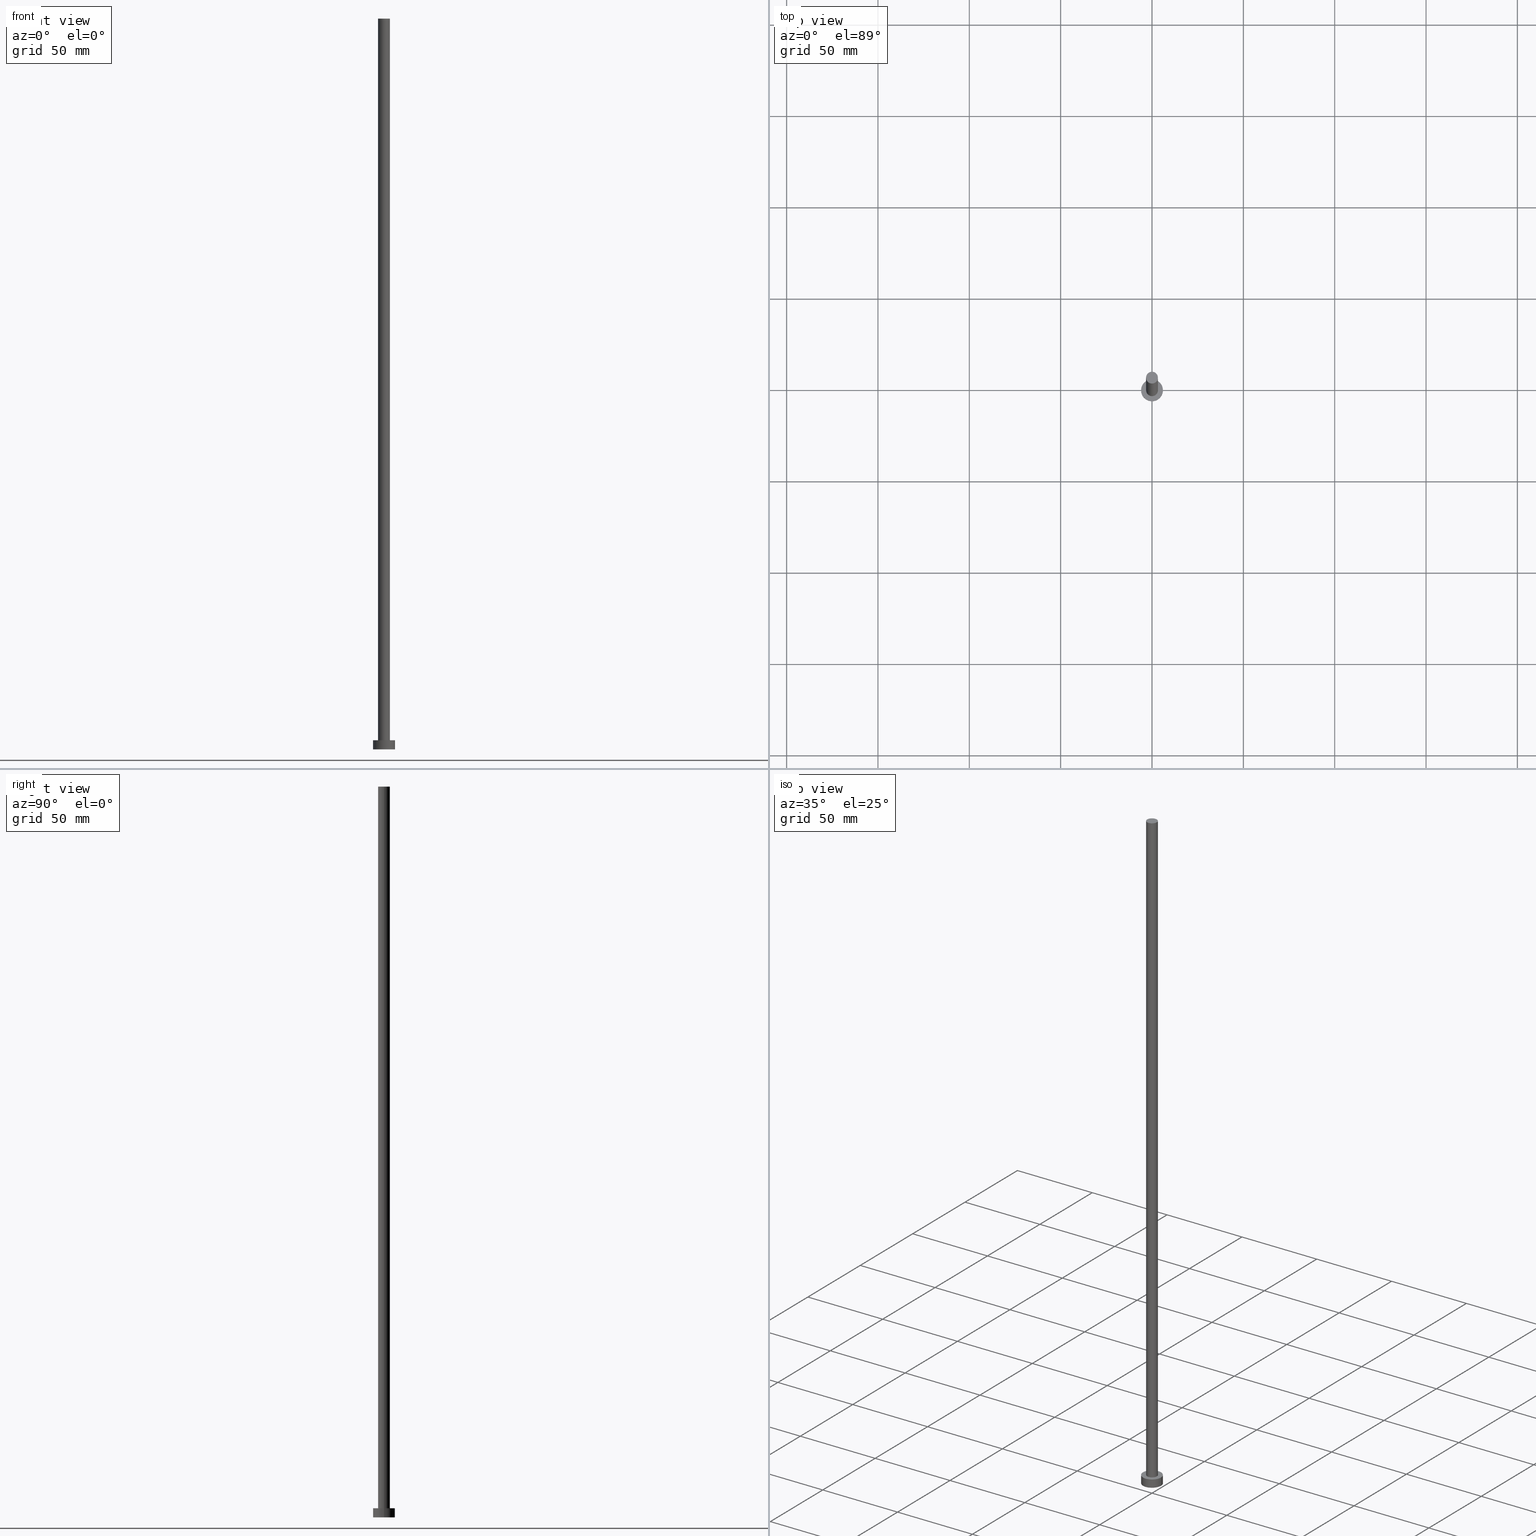
[diagram: canonical four-view strip — front | top / right | iso, engineering-drawing reading convention]
A machine part, canonical four-view strip (front | top / right | iso — engineering-drawing reading convention). The complete STEP part file that produces these views, byte-faithful:
ISO-10303-21;
HEADER;
FILE_DESCRIPTION (( 'STEP AP203' ),
    '1' );
FILE_NAME ('4914.STEP',
    '2023-02-13T15:16:41',
    ( '' ),
    ( '' ),
    'SwSTEP 2.0',
    'SolidWorks 2019',
    '' );
FILE_SCHEMA (( 'CONFIG_CONTROL_DESIGN' ));
ENDSEC;

DATA;
#1 = EDGE_CURVE ( 'NONE', #215, #181, #124, .T. ) ;
#2 = DIRECTION ( 'NONE',  ( 0.000000000000000000, 0.000000000000000000, 1.000000000000000000 ) ) ;
#3 = CARTESIAN_POINT ( 'NONE',  ( -6.000000000000000888, 0.000000000000000000, 5.000000000000000000 ) ) ;
#4 = APPROVAL_ROLE ( '' ) ;
#5 = CC_DESIGN_APPROVAL ( #178, ( #255 ) ) ;
#6 = DATE_TIME_ROLE ( 'creation_date' ) ;
#7 = DIRECTION ( 'NONE',  ( 1.000000000000000000, 0.000000000000000000, 0.000000000000000000 ) ) ;
#8 = CYLINDRICAL_SURFACE ( 'NONE', #237, 6.000000000000000888 ) ;
#9 = APPROVAL_DATE_TIME ( #225, #65 ) ;
#10 = DIRECTION ( 'NONE',  ( -1.000000000000000000, 0.000000000000000000, 0.000000000000000000 ) ) ;
#11 = APPROVAL_STATUS ( 'not_yet_approved' ) ;
#12 = AXIS2_PLACEMENT_3D ( 'NONE', #82, #46, #99 ) ;
#13 = APPROVAL_PERSON_ORGANIZATION ( #37, #106, #192 ) ;
#14 = ORIENTED_EDGE ( 'NONE', *, *, #44, .F. ) ;
#15 = DIRECTION ( 'NONE',  ( -0.000000000000000000, -0.000000000000000000, -1.000000000000000000 ) ) ;
#16 = FACE_OUTER_BOUND ( 'NONE', #97, .T. ) ;
#17 = ORIENTED_EDGE ( 'NONE', *, *, #162, .T. ) ;
#18 = APPLICATION_CONTEXT ( 'configuration controlled 3d designs of mechanical parts and assemblies' ) ;
#19 = APPROVAL_PERSON_ORGANIZATION ( #128, #178, #211 ) ;
#20 = CC_DESIGN_PERSON_AND_ORGANIZATION_ASSIGNMENT ( #229, #160, ( #250 ) ) ;
#21 = ORIENTED_EDGE ( 'NONE', *, *, #49, .F. ) ;
#22 = CARTESIAN_POINT ( 'NONE',  ( -3.250000000000000444, 0.000000000000000000, 400.0000000000000000 ) ) ;
#23 = FACE_OUTER_BOUND ( 'NONE', #157, .T. ) ;
#24 = CC_DESIGN_PERSON_AND_ORGANIZATION_ASSIGNMENT ( #158, #70, ( #222 ) ) ;
#25 = LINE ( 'NONE', #3, #151 ) ;
#26 = CARTESIAN_POINT ( 'NONE',  ( 6.000000000000000888, 7.347880794884120722E-16, 0.000000000000000000 ) ) ;
#27 = DIRECTION ( 'NONE',  ( -0.000000000000000000, -0.000000000000000000, -1.000000000000000000 ) ) ;
#28 = EDGE_CURVE ( 'NONE', #169, #55, #167, .T. ) ;
#29 = APPROVAL_DATE_TIME ( #177, #178 ) ;
#30 = CARTESIAN_POINT ( 'NONE',  ( 0.000000000000000000, 0.000000000000000000, 5.000000000000000000 ) ) ;
#31 = DATE_TIME_ROLE ( 'classification_date' ) ;
#32 = EDGE_CURVE ( 'NONE', #55, #169, #239, .T. ) ;
#33 = CARTESIAN_POINT ( 'NONE',  ( 6.000000000000000888, 7.347880794884120722E-16, 5.000000000000000000 ) ) ;
#34 = PERSON_AND_ORGANIZATION_ROLE ( 'creator' ) ;
#35 = DIRECTION ( 'NONE',  ( -0.000000000000000000, -0.000000000000000000, -1.000000000000000000 ) ) ;
#36 = FACE_BOUND ( 'NONE', #61, .T. ) ;
#37 = PERSON_AND_ORGANIZATION ( #123, #147 ) ;
#38 = CARTESIAN_POINT ( 'NONE',  ( 0.000000000000000000, 0.000000000000000000, 0.000000000000000000 ) ) ;
#39 = ORIENTED_EDGE ( 'NONE', *, *, #32, .T. ) ;
#40 = LINE ( 'NONE', #22, #90 ) ;
#41 = CIRCLE ( 'NONE', #146, 3.250000000000000444 ) ;
#42 =( GEOMETRIC_REPRESENTATION_CONTEXT ( 3 ) GLOBAL_UNCERTAINTY_ASSIGNED_CONTEXT ( ( #245 ) ) GLOBAL_UNIT_ASSIGNED_CONTEXT ( ( #186, #201, #164 ) ) REPRESENTATION_CONTEXT ( 'NONE', 'WORKASPACE' ) );
#43 = DIRECTION ( 'NONE',  ( 0.000000000000000000, 0.000000000000000000, 1.000000000000000000 ) ) ;
#44 = EDGE_CURVE ( 'NONE', #138, #55, #209, .T. ) ;
#45 = CC_DESIGN_PERSON_AND_ORGANIZATION_ASSIGNMENT ( #227, #233, ( #255 ) ) ;
#46 = DIRECTION ( 'NONE',  ( 0.000000000000000000, 0.000000000000000000, 1.000000000000000000 ) ) ;
#47 = AXIS2_PLACEMENT_3D ( 'NONE', #66, #148, #173 ) ;
#48 = CARTESIAN_POINT ( 'NONE',  ( 6.000000000000000888, 7.347880794884120722E-16, 5.000000000000000000 ) ) ;
#49 = EDGE_CURVE ( 'NONE', #75, #169, #25, .T. ) ;
#50 = FACE_OUTER_BOUND ( 'NONE', #183, .T. ) ;
#51 = CALENDAR_DATE ( 2023, 13, 2 ) ;
#52 = DIRECTION ( 'NONE',  ( 0.000000000000000000, 0.000000000000000000, 1.000000000000000000 ) ) ;
#53 = FACE_OUTER_BOUND ( 'NONE', #145, .T. ) ;
#54 = CARTESIAN_POINT ( 'NONE',  ( 0.000000000000000000, 0.000000000000000000, 400.0000000000000000 ) ) ;
#55 = VERTEX_POINT ( 'NONE', #26 ) ;
#56 = CARTESIAN_POINT ( 'NONE',  ( 0.000000000000000000, 0.000000000000000000, 5.000000000000000000 ) ) ;
#57 = EDGE_LOOP ( 'NONE', ( #202, #72, #39, #21 ) ) ;
#58 = PLANE ( 'NONE',  #216 ) ;
#59 = AXIS2_PLACEMENT_3D ( 'NONE', #85, #52, #131 ) ;
#60 = CIRCLE ( 'NONE', #111, 3.250000000000000444 ) ;
#61 = EDGE_LOOP ( 'NONE', ( #109, #197 ) ) ;
#62 = ADVANCED_BREP_SHAPE_REPRESENTATION ( '4914', ( #236, #141 ), #42 ) ;
#63 = DIRECTION ( 'NONE',  ( 1.000000000000000000, 0.000000000000000000, -0.000000000000000000 ) ) ;
#64 = ADVANCED_FACE ( 'NONE', ( #16 ), #156, .T. ) ;
#65 = APPROVAL ( #191, 'NEUR�EN�' ) ;
#66 = CARTESIAN_POINT ( 'NONE',  ( 0.000000000000000000, 0.000000000000000000, 0.000000000000000000 ) ) ;
#67 = PERSON_AND_ORGANIZATION ( #123, #147 ) ;
#68 = CARTESIAN_POINT ( 'NONE',  ( 0.000000000000000000, 0.000000000000000000, 0.000000000000000000 ) ) ;
#69 = LOCAL_TIME ( 16, 16, 41.00000000000000000, #175 ) ;
#70 = PERSON_AND_ORGANIZATION_ROLE ( 'creator' ) ;
#71 = ADVANCED_FACE ( 'NONE', ( #213 ), #159, .T. ) ;
#72 = ORIENTED_EDGE ( 'NONE', *, *, #44, .T. ) ;
#73 = COORDINATED_UNIVERSAL_TIME_OFFSET ( 1, 0, .AHEAD. ) ;
#74 = CYLINDRICAL_SURFACE ( 'NONE', #88, 3.250000000000000444 ) ;
#75 = VERTEX_POINT ( 'NONE', #112 ) ;
#76 = APPROVAL_PERSON_ORGANIZATION ( #102, #65, #4 ) ;
#77 = ORIENTED_EDGE ( 'NONE', *, *, #28, .F. ) ;
#78 = DIRECTION ( 'NONE',  ( 1.000000000000000000, 0.000000000000000000, 0.000000000000000000 ) ) ;
#79 = CARTESIAN_POINT ( 'NONE',  ( 3.250000000000000444, 3.980102097228897245E-16, 5.000000000000000000 ) ) ;
#80 = ORIENTED_EDGE ( 'NONE', *, *, #174, .T. ) ;
#81 = DIRECTION ( 'NONE',  ( 1.000000000000000000, 0.000000000000000000, 0.000000000000000000 ) ) ;
#82 = CARTESIAN_POINT ( 'NONE',  ( 0.000000000000000000, 0.000000000000000000, 5.000000000000000000 ) ) ;
#83 = CIRCLE ( 'NONE', #193, 6.000000000000000888 ) ;
#84 = PERSON_AND_ORGANIZATION ( #123, #147 ) ;
#85 = CARTESIAN_POINT ( 'NONE',  ( 0.000000000000000000, 0.000000000000000000, 400.0000000000000000 ) ) ;
#86 = DATE_AND_TIME ( #155, #234 ) ;
#87 = CARTESIAN_POINT ( 'NONE',  ( 0.000000000000000000, 0.000000000000000000, 400.0000000000000000 ) ) ;
#88 = AXIS2_PLACEMENT_3D ( 'NONE', #87, #27, #199 ) ;
#89 = EDGE_CURVE ( 'NONE', #75, #138, #246, .T. ) ;
#90 = VECTOR ( 'NONE', #252, 1000.000000000000000 ) ;
#91 = DATE_AND_TIME ( #51, #69 ) ;
#92 = ORIENTED_EDGE ( 'NONE', *, *, #207, .T. ) ;
#93 = CARTESIAN_POINT ( 'NONE',  ( 0.000000000000000000, 0.000000000000000000, 5.000000000000000000 ) ) ;
#94 = CC_DESIGN_APPROVAL ( #65, ( #222 ) ) ;
#95 = ORIENTED_EDGE ( 'NONE', *, *, #242, .F. ) ;
#96 = DIRECTION ( 'NONE',  ( 0.000000000000000000, 0.000000000000000000, 1.000000000000000000 ) ) ;
#97 = EDGE_LOOP ( 'NONE', ( #17, #235 ) ) ;
#98 = ORIENTED_EDGE ( 'NONE', *, *, #244, .T. ) ;
#99 = DIRECTION ( 'NONE',  ( 1.000000000000000000, 0.000000000000000000, 0.000000000000000000 ) ) ;
#100 = PLANE ( 'NONE',  #208 ) ;
#101 = CARTESIAN_POINT ( 'NONE',  ( 0.000000000000000000, 0.000000000000000000, 0.000000000000000000 ) ) ;
#102 = PERSON_AND_ORGANIZATION ( #123, #147 ) ;
#103 = DIRECTION ( 'NONE',  ( 1.000000000000000000, 0.000000000000000000, -0.000000000000000000 ) ) ;
#104 = CARTESIAN_POINT ( 'NONE',  ( 3.250000000000000444, 3.980102097228897245E-16, 400.0000000000000000 ) ) ;
#105 = SHAPE_DEFINITION_REPRESENTATION ( #118, #62 ) ;
#106 = APPROVAL ( #11, 'NEUR�EN�' ) ;
#107 = CARTESIAN_POINT ( 'NONE',  ( -3.250000000000000444, 0.000000000000000000, 400.0000000000000000 ) ) ;
#108 = COORDINATED_UNIVERSAL_TIME_OFFSET ( 1, 0, .AHEAD. ) ;
#109 = ORIENTED_EDGE ( 'NONE', *, *, #179, .F. ) ;
#110 = VECTOR ( 'NONE', #224, 1000.000000000000000 ) ;
#111 = AXIS2_PLACEMENT_3D ( 'NONE', #116, #96, #184 ) ;
#112 = CARTESIAN_POINT ( 'NONE',  ( -6.000000000000000888, 0.000000000000000000, 5.000000000000000000 ) ) ;
#113 = EDGE_LOOP ( 'NONE', ( #115, #80 ) ) ;
#114 = FACE_OUTER_BOUND ( 'NONE', #113, .T. ) ;
#115 = ORIENTED_EDGE ( 'NONE', *, *, #89, .T. ) ;
#116 = CARTESIAN_POINT ( 'NONE',  ( 0.000000000000000000, 0.000000000000000000, 400.0000000000000000 ) ) ;
#117 = CC_DESIGN_DATE_AND_TIME_ASSIGNMENT ( #91, #31, ( #255 ) ) ;
#118 = PRODUCT_DEFINITION_SHAPE ( 'NONE', 'NONE',  #222 ) ;
#119 = ORIENTED_EDGE ( 'NONE', *, *, #49, .T. ) ;
#120 = AXIS2_PLACEMENT_3D ( 'NONE', #230, #129, #212 ) ;
#121 = LOCAL_TIME ( 16, 16, 41.00000000000000000, #194 ) ;
#122 = CARTESIAN_POINT ( 'NONE',  ( -3.250000000000000444, 0.000000000000000000, 5.000000000000000000 ) ) ;
#123 = PERSON ( 'NEUR�EN�', 'NEUR�EN�', 'NEUR�EN�', ('NEUR�EN�'), ('NEUR�EN�'), ('NEUR�EN�') ) ;
#124 = CIRCLE ( 'NONE', #12, 3.250000000000000444 ) ;
#125 = DIRECTION ( 'NONE',  ( 1.000000000000000000, 0.000000000000000000, 0.000000000000000000 ) ) ;
#126 = APPLICATION_PROTOCOL_DEFINITION ( 'international standard', 'config_control_design', 1994, #172 ) ;
#127 = DIRECTION ( 'NONE',  ( -0.000000000000000000, -0.000000000000000000, -1.000000000000000000 ) ) ;
#128 = PERSON_AND_ORGANIZATION ( #123, #147 ) ;
#129 = DIRECTION ( 'NONE',  ( -0.000000000000000000, -0.000000000000000000, -1.000000000000000000 ) ) ;
#130 = APPROVAL_STATUS ( 'not_yet_approved' ) ;
#131 = DIRECTION ( 'NONE',  ( 1.000000000000000000, 0.000000000000000000, -0.000000000000000000 ) ) ;
#132 = VERTEX_POINT ( 'NONE', #104 ) ;
#133 = DATE_AND_TIME ( #180, #204 ) ;
#134 = ORIENTED_EDGE ( 'NONE', *, *, #244, .F. ) ;
#135 = CALENDAR_DATE ( 2023, 13, 2 ) ;
#136 = ADVANCED_FACE ( 'NONE', ( #137 ), #74, .T. ) ;
#137 = FACE_OUTER_BOUND ( 'NONE', #251, .T. ) ;
#138 = VERTEX_POINT ( 'NONE', #33 ) ;
#139 = DIRECTION ( 'NONE',  ( 0.000000000000000000, 0.000000000000000000, 1.000000000000000000 ) ) ;
#140 = PRODUCT ( '4914', '4914', '', ( #190 ) ) ;
#141 = AXIS2_PLACEMENT_3D ( 'NONE', #38, #2, #81 ) ;
#142 = VERTEX_POINT ( 'NONE', #107 ) ;
#143 = APPLICATION_PROTOCOL_DEFINITION ( 'international standard', 'config_control_design', 1994, #18 ) ;
#144 = ADVANCED_FACE ( 'NONE', ( #50 ), #232, .T. ) ;
#145 = EDGE_LOOP ( 'NONE', ( #14, #220, #119, #238 ) ) ;
#146 = AXIS2_PLACEMENT_3D ( 'NONE', #54, #139, #7 ) ;
#147 = ORGANIZATION ( 'NEUR�EN�', 'NEUR�EN�', '' ) ;
#148 = DIRECTION ( 'NONE',  ( 0.000000000000000000, 0.000000000000000000, 1.000000000000000000 ) ) ;
#149 = PERSON_AND_ORGANIZATION_ROLE ( 'design_owner' ) ;
#150 = CIRCLE ( 'NONE', #188, 3.250000000000000444 ) ;
#151 = VECTOR ( 'NONE', #127, 1000.000000000000000 ) ;
#152 = CALENDAR_DATE ( 2023, 13, 2 ) ;
#153 = DIRECTION ( 'NONE',  ( 0.000000000000000000, 0.000000000000000000, 1.000000000000000000 ) ) ;
#154 = DIRECTION ( 'NONE',  ( 1.000000000000000000, 0.000000000000000000, 0.000000000000000000 ) ) ;
#155 = CALENDAR_DATE ( 2023, 13, 2 ) ;
#156 = PLANE ( 'NONE',  #59 ) ;
#157 = EDGE_LOOP ( 'NONE', ( #77, #200 ) ) ;
#158 = PERSON_AND_ORGANIZATION ( #123, #147 ) ;
#159 = CYLINDRICAL_SURFACE ( 'NONE', #217, 6.000000000000000888 ) ;
#160 = PERSON_AND_ORGANIZATION_ROLE ( 'design_supplier' ) ;
#161 = CARTESIAN_POINT ( 'NONE',  ( 0.000000000000000000, 0.000000000000000000, 5.000000000000000000 ) ) ;
#162 = EDGE_CURVE ( 'NONE', #142, #132, #41, .T. ) ;
#163 = DIRECTION ( 'NONE',  ( 1.000000000000000000, 0.000000000000000000, 0.000000000000000000 ) ) ;
#164 =( NAMED_UNIT ( * ) SI_UNIT ( $, .STERADIAN. ) SOLID_ANGLE_UNIT ( ) );
#165 = CC_DESIGN_DATE_AND_TIME_ASSIGNMENT ( #86, #6, ( #222 ) ) ;
#166 = DIRECTION ( 'NONE',  ( 0.000000000000000000, 0.000000000000000000, 1.000000000000000000 ) ) ;
#167 = CIRCLE ( 'NONE', #47, 6.000000000000000888 ) ;
#168 = CC_DESIGN_APPROVAL ( #106, ( #250 ) ) ;
#169 = VERTEX_POINT ( 'NONE', #241 ) ;
#170 = CARTESIAN_POINT ( 'NONE',  ( 3.250000000000000444, 3.980102097228897245E-16, 400.0000000000000000 ) ) ;
#171 = CC_DESIGN_PERSON_AND_ORGANIZATION_ASSIGNMENT ( #67, #149, ( #140 ) ) ;
#172 = APPLICATION_CONTEXT ( 'configuration controlled 3d designs of mechanical parts and assemblies' ) ;
#173 = DIRECTION ( 'NONE',  ( 1.000000000000000000, 0.000000000000000000, 0.000000000000000000 ) ) ;
#174 = EDGE_CURVE ( 'NONE', #138, #75, #83, .T. ) ;
#175 = COORDINATED_UNIVERSAL_TIME_OFFSET ( 1, 0, .AHEAD. ) ;
#176 = CARTESIAN_POINT ( 'NONE',  ( 0.000000000000000000, 0.000000000000000000, 5.000000000000000000 ) ) ;
#177 = DATE_AND_TIME ( #135, #121 ) ;
#178 = APPROVAL ( #130, 'NEUR�EN�' ) ;
#179 = EDGE_CURVE ( 'NONE', #181, #215, #150, .T. ) ;
#180 = CALENDAR_DATE ( 2023, 13, 2 ) ;
#181 = VERTEX_POINT ( 'NONE', #122 ) ;
#182 = DIRECTION ( 'NONE',  ( 0.000000000000000000, 0.000000000000000000, 1.000000000000000000 ) ) ;
#183 = EDGE_LOOP ( 'NONE', ( #95, #92, #228, #134 ) ) ;
#184 = DIRECTION ( 'NONE',  ( 1.000000000000000000, 0.000000000000000000, 0.000000000000000000 ) ) ;
#185 = CARTESIAN_POINT ( 'NONE',  ( 0.000000000000000000, 0.000000000000000000, 5.000000000000000000 ) ) ;
#186 =( LENGTH_UNIT ( ) NAMED_UNIT ( * ) SI_UNIT ( .MILLI., .METRE. ) );
#187 = DIRECTION ( 'NONE',  ( 0.000000000000000000, 0.000000000000000000, 1.000000000000000000 ) ) ;
#188 = AXIS2_PLACEMENT_3D ( 'NONE', #185, #43, #78 ) ;
#189 = PRODUCT_RELATED_PRODUCT_CATEGORY ( 'detail', '', ( #140 ) ) ;
#190 = MECHANICAL_CONTEXT ( 'NONE', #18, 'mechanical' ) ;
#191 = APPROVAL_STATUS ( 'not_yet_approved' ) ;
#192 = APPROVAL_ROLE ( '' ) ;
#193 = AXIS2_PLACEMENT_3D ( 'NONE', #176, #243, #154 ) ;
#194 = COORDINATED_UNIVERSAL_TIME_OFFSET ( 1, 0, .AHEAD. ) ;
#195 = AXIS2_PLACEMENT_3D ( 'NONE', #68, #187, #125 ) ;
#196 = CC_DESIGN_PERSON_AND_ORGANIZATION_ASSIGNMENT ( #84, #34, ( #250 ) ) ;
#197 = ORIENTED_EDGE ( 'NONE', *, *, #1, .F. ) ;
#198 = LOCAL_TIME ( 16, 16, 41.00000000000000000, #240 ) ;
#199 = DIRECTION ( 'NONE',  ( -1.000000000000000000, 0.000000000000000000, 0.000000000000000000 ) ) ;
#200 = ORIENTED_EDGE ( 'NONE', *, *, #32, .F. ) ;
#201 =( NAMED_UNIT ( * ) PLANE_ANGLE_UNIT ( ) SI_UNIT ( $, .RADIAN. ) );
#202 = ORIENTED_EDGE ( 'NONE', *, *, #174, .F. ) ;
#203 = CLOSED_SHELL ( 'NONE', ( #144, #71, #219, #226, #210, #136, #64 ) ) ;
#204 = LOCAL_TIME ( 16, 16, 41.00000000000000000, #108 ) ;
#205 = ORIENTED_EDGE ( 'NONE', *, *, #207, .F. ) ;
#206 = LINE ( 'NONE', #170, #218 ) ;
#207 = EDGE_CURVE ( 'NONE', #132, #215, #206, .T. ) ;
#208 = AXIS2_PLACEMENT_3D ( 'NONE', #101, #166, #103 ) ;
#209 = LINE ( 'NONE', #48, #110 ) ;
#210 = ADVANCED_FACE ( 'NONE', ( #23 ), #100, .F. ) ;
#211 = APPROVAL_ROLE ( '' ) ;
#212 = DIRECTION ( 'NONE',  ( -1.000000000000000000, 0.000000000000000000, 0.000000000000000000 ) ) ;
#213 = FACE_OUTER_BOUND ( 'NONE', #57, .T. ) ;
#214 = APPROVAL_DATE_TIME ( #133, #106 ) ;
#215 = VERTEX_POINT ( 'NONE', #79 ) ;
#216 = AXIS2_PLACEMENT_3D ( 'NONE', #93, #182, #63 ) ;
#217 = AXIS2_PLACEMENT_3D ( 'NONE', #30, #35, #247 ) ;
#218 = VECTOR ( 'NONE', #253, 1000.000000000000000 ) ;
#219 = ADVANCED_FACE ( 'NONE', ( #53 ), #8, .T. ) ;
#220 = ORIENTED_EDGE ( 'NONE', *, *, #89, .F. ) ;
#221 = CC_DESIGN_SECURITY_CLASSIFICATION ( #255, ( #250 ) ) ;
#222 = PRODUCT_DEFINITION ( 'NEZN�M�', '', #250, #223 ) ;
#223 = DESIGN_CONTEXT ( 'detailed design', #172, 'design' ) ;
#224 = DIRECTION ( 'NONE',  ( -0.000000000000000000, -0.000000000000000000, -1.000000000000000000 ) ) ;
#225 = DATE_AND_TIME ( #152, #198 ) ;
#226 = ADVANCED_FACE ( 'NONE', ( #36, #114 ), #58, .T. ) ;
#227 = PERSON_AND_ORGANIZATION ( #123, #147 ) ;
#228 = ORIENTED_EDGE ( 'NONE', *, *, #1, .T. ) ;
#229 = PERSON_AND_ORGANIZATION ( #123, #147 ) ;
#230 = CARTESIAN_POINT ( 'NONE',  ( 0.000000000000000000, 0.000000000000000000, 400.0000000000000000 ) ) ;
#231 = SECURITY_CLASSIFICATION_LEVEL ( 'unclassified' ) ;
#232 = CYLINDRICAL_SURFACE ( 'NONE', #120, 3.250000000000000444 ) ;
#233 = PERSON_AND_ORGANIZATION_ROLE ( 'classification_officer' ) ;
#234 = LOCAL_TIME ( 16, 16, 41.00000000000000000, #73 ) ;
#235 = ORIENTED_EDGE ( 'NONE', *, *, #242, .T. ) ;
#236 = MANIFOLD_SOLID_BREP ( 'P�idat vysunut�m3', #203 ) ;
#237 = AXIS2_PLACEMENT_3D ( 'NONE', #161, #15, #10 ) ;
#238 = ORIENTED_EDGE ( 'NONE', *, *, #28, .T. ) ;
#239 = CIRCLE ( 'NONE', #195, 6.000000000000000888 ) ;
#240 = COORDINATED_UNIVERSAL_TIME_OFFSET ( 1, 0, .AHEAD. ) ;
#241 = CARTESIAN_POINT ( 'NONE',  ( -6.000000000000000888, 0.000000000000000000, 0.000000000000000000 ) ) ;
#242 = EDGE_CURVE ( 'NONE', #132, #142, #60, .T. ) ;
#243 = DIRECTION ( 'NONE',  ( 0.000000000000000000, 0.000000000000000000, 1.000000000000000000 ) ) ;
#244 = EDGE_CURVE ( 'NONE', #142, #181, #40, .T. ) ;
#245 = UNCERTAINTY_MEASURE_WITH_UNIT (LENGTH_MEASURE( 1.000000000000000082E-05 ), #186, 'distance_accuracy_value', 'NONE');
#246 = CIRCLE ( 'NONE', #249, 6.000000000000000888 ) ;
#247 = DIRECTION ( 'NONE',  ( -1.000000000000000000, 0.000000000000000000, 0.000000000000000000 ) ) ;
#248 = ORIENTED_EDGE ( 'NONE', *, *, #179, .T. ) ;
#249 = AXIS2_PLACEMENT_3D ( 'NONE', #56, #153, #163 ) ;
#250 = PRODUCT_DEFINITION_FORMATION_WITH_SPECIFIED_SOURCE ( 'LIBOVOLN�', '', #140, .NOT_KNOWN. ) ;
#251 = EDGE_LOOP ( 'NONE', ( #205, #254, #98, #248 ) ) ;
#252 = DIRECTION ( 'NONE',  ( -0.000000000000000000, -0.000000000000000000, -1.000000000000000000 ) ) ;
#253 = DIRECTION ( 'NONE',  ( -0.000000000000000000, -0.000000000000000000, -1.000000000000000000 ) ) ;
#254 = ORIENTED_EDGE ( 'NONE', *, *, #162, .F. ) ;
#255 = SECURITY_CLASSIFICATION ( '', '', #231 ) ;
ENDSEC;
END-ISO-10303-21;
